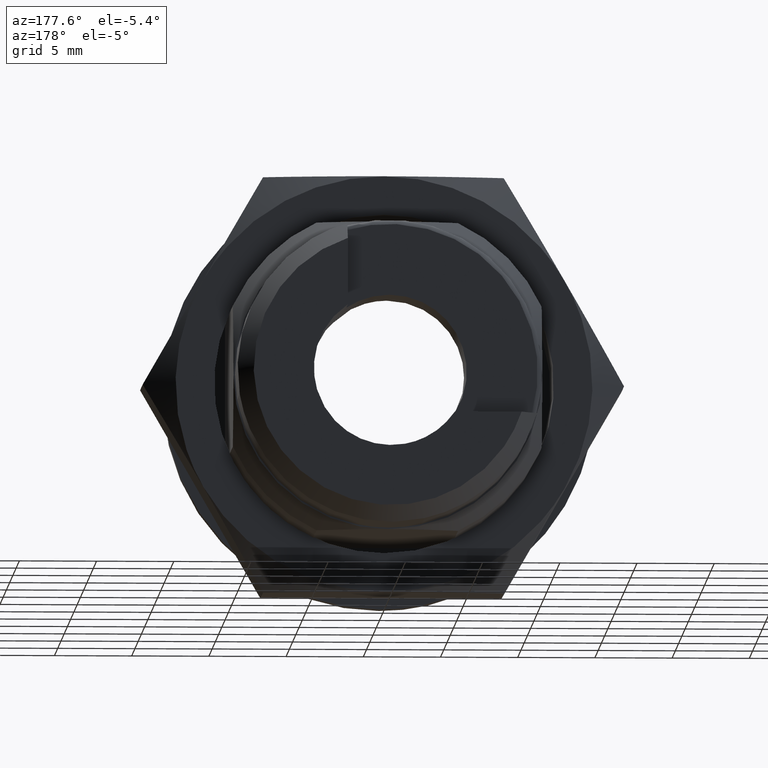
[diagram: clean part render]
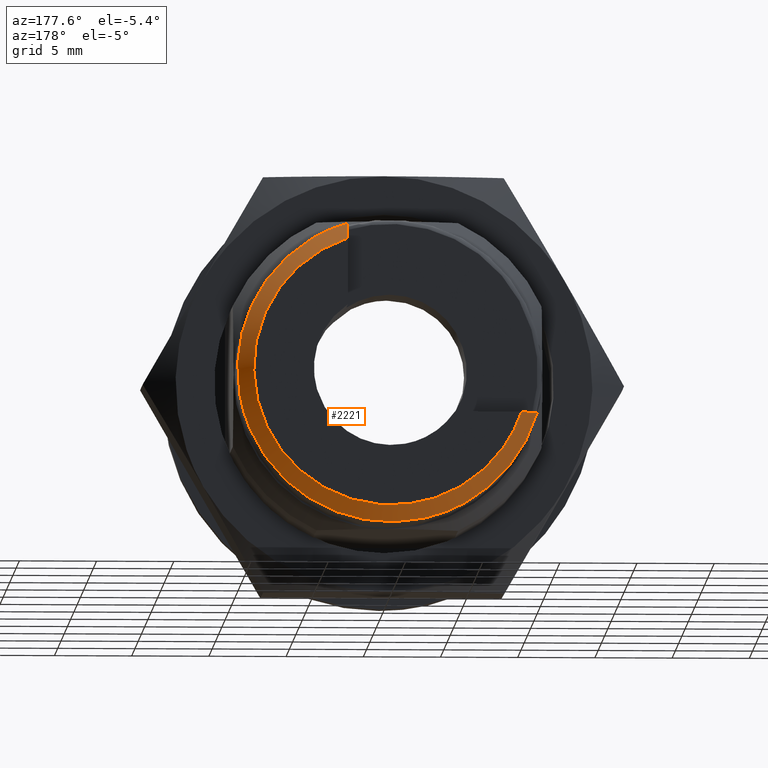
[diagram: same view with one face highlighted and labeled with its STEP entity id]
A machine part, auxiliary view. The second image highlights one B-rep face of the part: STEP entity #2221.
In plain terms, the highlighted face is a freeform B-spline surface patch.
Its self-contained STEP definition (entity closure, byte-faithful):
#1017=CARTESIAN_POINT('',(17.000000854954020,2.189732011258529,-9.654795856428459));
#1018=VERTEX_POINT('',#1017);
#1019=CARTESIAN_POINT('',(17.000000854954148,-9.764228654767418,-1.633966978812623));
#1020=VERTEX_POINT('',#1019);
#1021=CARTESIAN_POINT('',(17.000000854954028,2.189732011258529,-9.654795856428459));
#1022=CARTESIAN_POINT('',(17.000000854954099,0.638530604749564,-10.006612241389783));
#1023=CARTESIAN_POINT('',(17.000000854954099,-0.944806919456774,-9.854813503836471));
#1024=CARTESIAN_POINT('',(17.000000854954095,-8.509905455758172,-9.129527587397025));
#1025=CARTESIAN_POINT('',(17.000000854954152,-9.764228654767418,-1.633966978812623));
#1033=(BOUNDED_CURVE()B_SPLINE_CURVE(2,(#1021,#1022,#1023,#1024,#1025),.UNSPECIFIED.,.F.,.U.)B_SPLINE_CURVE_WITH_KNOTS((3,2,3),(0.253771595371476,0.333333333333333,0.648497011323892),.UNSPECIFIED.)CURVE()GEOMETRIC_REPRESENTATION_ITEM()RATIONAL_B_SPLINE_CURVE((0.916906307246108,0.945427506289492,1.0,0.783824885233581,0.976433036026057))REPRESENTATION_ITEM(''));
#1034=EDGE_CURVE('',#1018,#1020,#1033,.T.);
#1103=CARTESIAN_POINT('',(17.000000854954099,9.495788991215560,-2.800000132992905));
#1104=VERTEX_POINT('',#1103);
#1105=CARTESIAN_POINT('',(17.000000854954099,9.495788991215569,-2.800000132992905));
#1106=CARTESIAN_POINT('',(17.000000854954106,7.853292355148033,-8.370286109446550));
#1107=CARTESIAN_POINT('',(17.000000854954028,2.189732011258529,-9.654795856428459));
#1115=(BOUNDED_CURVE()B_SPLINE_CURVE(2,(#1105,#1106,#1107),.UNSPECIFIED.,.F.,.U.)B_SPLINE_CURVE_WITH_KNOTS((3,3),(0.0,0.253771595371476),.UNSPECIFIED.)CURVE()GEOMETRIC_REPRESENTATION_ITEM()RATIONAL_B_SPLINE_CURVE((1.0,0.825934561673920,0.916906307246108))REPRESENTATION_ITEM(''));
#1116=EDGE_CURVE('',#1104,#1018,#1115,.T.);
#1152=CARTESIAN_POINT('',(17.000000854954099,-2.800000132992805,9.495788991215591));
#1153=VERTEX_POINT('',#1152);
#1154=CARTESIAN_POINT('',(17.000000854954152,-9.764228654767418,-1.633966978812623));
#1155=CARTESIAN_POINT('',(17.000000854954099,-9.821625176525240,-1.290977940668764));
#1156=CARTESIAN_POINT('',(17.000000854954099,-9.854813503836482,-0.944806919456666));
#1157=CARTESIAN_POINT('',(17.000000854954106,-10.634307184481919,7.185705984277607));
#1158=CARTESIAN_POINT('',(17.000000854954099,-2.800000132992809,9.495788991215598));
#1166=(BOUNDED_CURVE()B_SPLINE_CURVE(2,(#1154,#1155,#1156,#1157,#1158),.UNSPECIFIED.,.F.,.U.)B_SPLINE_CURVE_WITH_KNOTS((3,2,3),(0.648497011323892,0.666666666666667,1.0),.UNSPECIFIED.)CURVE()GEOMETRIC_REPRESENTATION_ITEM()RATIONAL_B_SPLINE_CURVE((0.976433036026057,0.987537182729832,1.0,0.771362067963413,1.0))REPRESENTATION_ITEM(''));
#1167=EDGE_CURVE('',#1020,#1153,#1166,.T.);
#2159=CARTESIAN_POINT('',(18.025000854954101,-2.157714607056655,8.608710764161163));
#2160=CARTESIAN_POINT('',(16.974375854954090,-2.413145456513444,9.627812315416385));
#2161=CARTESIAN_POINT('',(18.025000854954101,-9.553664690812081,6.754966345749870));
#2162=CARTESIAN_POINT('',(16.974375854954094,-10.684630148161546,7.554621122198999));
#2163=CARTESIAN_POINT('',(18.025000854954101,-8.835550852283182,-0.835867503380685));
#2164=CARTESIAN_POINT('',(16.974375854954090,-9.881505795646131,-0.934817728643838));
#2165=CARTESIAN_POINT('',(18.025000854954101,-8.117437013754284,-8.426701352511239));
#2166=CARTESIAN_POINT('',(16.974375854954094,-9.078381443130713,-9.424256579486675));
#2167=CARTESIAN_POINT('',(18.025000854954101,-0.505067939528984,-8.860617344347395));
#2168=CARTESIAN_POINT('',(16.974375854954090,-0.564858021315225,-9.909539665944667));
#2169=CARTESIAN_POINT('',(18.025000854954101,7.107301134696315,-9.294533336183548));
#2170=CARTESIAN_POINT('',(16.974375854954094,7.948665400500262,-10.394822752402659));
#2171=CARTESIAN_POINT('',(18.025000854954101,8.683337807878573,-1.834469367625538));
#2172=CARTESIAN_POINT('',(16.974375854954090,9.711273729122695,-2.051634356610920));
#2180=(BOUNDED_SURFACE()B_SPLINE_SURFACE(1,2,((#2159,#2161,#2163,#2165,#2167,#2169,#2171),(#2160,#2162,#2164,#2166,#2168,#2170,#2172)),.UNSPECIFIED.,.F.,.F.,.U.)B_SPLINE_SURFACE_WITH_KNOTS((2,2),(3,2,2,3),(0.0,1.0),(0.0,14.712665627361570,29.425331254723140,44.137996882084707),.UNSPECIFIED.)GEOMETRIC_REPRESENTATION_ITEM()RATIONAL_B_SPLINE_SURFACE(((1.0,0.758513583348869,1.0,0.758513583348869,1.0,0.758513583348869,1.0),(1.0,0.758513583348869,1.0,0.758513583348869,1.0,0.758513583348869,1.0)))REPRESENTATION_ITEM('')SURFACE());
#2181=CARTESIAN_POINT('',(18.000000854954099,-2.800000132992805,8.448077155497670));
#2182=VERTEX_POINT('',#2181);
#2183=CARTESIAN_POINT('',(17.000000854954099,-2.800000132992805,9.495788991215591));
#2184=CARTESIAN_POINT('',(17.334192862514961,-2.800000132992805,9.147371283633994));
#2185=CARTESIAN_POINT('',(17.667627434545160,-2.800000132992805,8.798230633440877));
#2186=CARTESIAN_POINT('',(18.000000854954099,-2.800000132992805,8.448077155497700));
#2187=QUASI_UNIFORM_CURVE('',3,(#2183,#2184,#2185,#2186),.UNSPECIFIED.,.F.,.U.);
#2188=EDGE_CURVE('',#1153,#2182,#2187,.T.);
#2189=ORIENTED_EDGE('',*,*,#2188,.F.);
#2190=ORIENTED_EDGE('',*,*,#1167,.F.);
#2191=ORIENTED_EDGE('',*,*,#1034,.F.);
#2192=ORIENTED_EDGE('',*,*,#1116,.F.);
#2193=CARTESIAN_POINT('',(18.000000854954099,8.448077155497641,-2.800000132992905));
#2194=VERTEX_POINT('',#2193);
#2195=CARTESIAN_POINT('',(18.000000854954099,8.448077155497670,-2.800000132992905));
#2196=CARTESIAN_POINT('',(17.667627434545160,8.798230633440838,-2.800000132992905));
#2197=CARTESIAN_POINT('',(17.334192862514950,9.147371283633973,-2.800000132992905));
#2198=CARTESIAN_POINT('',(17.000000854954099,9.495788991215560,-2.800000132992905));
#2199=QUASI_UNIFORM_CURVE('',3,(#2195,#2196,#2197,#2198),.UNSPECIFIED.,.F.,.U.);
#2200=EDGE_CURVE('',#2194,#1104,#2199,.T.);
#2201=ORIENTED_EDGE('',*,*,#2200,.F.);
#2202=CARTESIAN_POINT('',(18.000000854954099,-2.800000132992810,8.448077155497698));
#2203=CARTESIAN_POINT('',(18.000000854954095,-9.613731004548360,6.189758842895973));
#2204=CARTESIAN_POINT('',(18.000000854954099,-8.849403973968432,-0.947659050246220));
#2205=CARTESIAN_POINT('',(18.000000854954095,-8.085076943388504,-8.085076943388408));
#2206=CARTESIAN_POINT('',(18.000000854954099,-0.947659050246326,-8.849403973968421));
#2207=CARTESIAN_POINT('',(18.000000854954095,6.189758842895853,-9.613731004548432));
#2208=CARTESIAN_POINT('',(18.000000854954099,8.448077155497664,-2.800000132992916));
#2216=(BOUNDED_CURVE()B_SPLINE_CURVE(2,(#2202,#2203,#2204,#2205,#2206,#2207,#2208),.UNSPECIFIED.,.F.,.U.)B_SPLINE_CURVE_WITH_KNOTS((3,2,2,3),(0.0,0.333333333333333,0.666666666666667,1.0),.UNSPECIFIED.)CURVE()GEOMETRIC_REPRESENTATION_ITEM()RATIONAL_B_SPLINE_CURVE((1.0,0.778378576867559,1.0,0.778378576867559,1.0,0.778378576867559,1.0))REPRESENTATION_ITEM(''));
#2217=EDGE_CURVE('',#2182,#2194,#2216,.T.);
#2218=ORIENTED_EDGE('',*,*,#2217,.F.);
#2219=EDGE_LOOP('',(#2189,#2190,#2191,#2192,#2201,#2218));
#2220=FACE_OUTER_BOUND('',#2219,.T.);
#2221=ADVANCED_FACE('',(#2220),#2180,.T.);